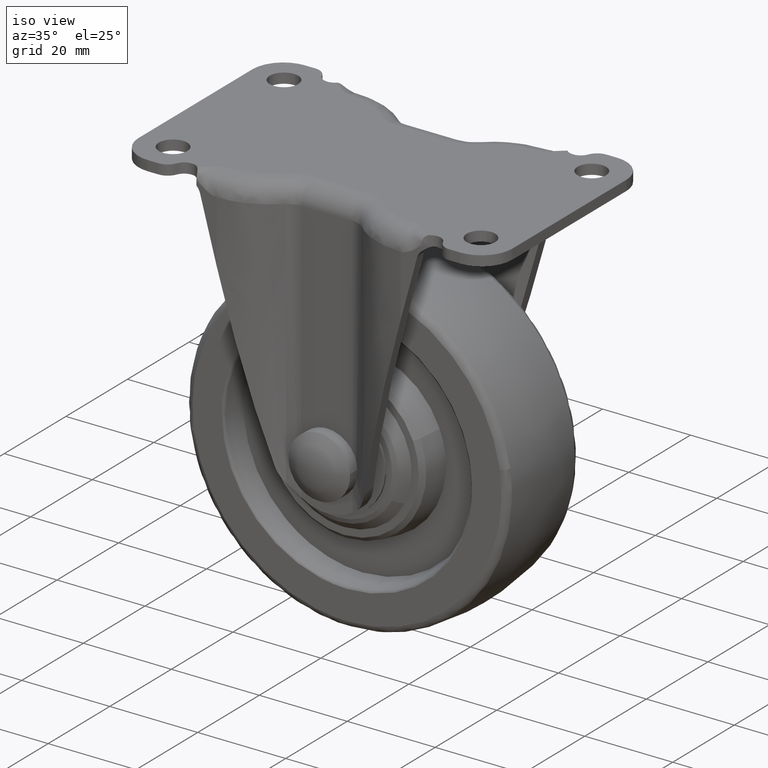
[diagram: clean part render]
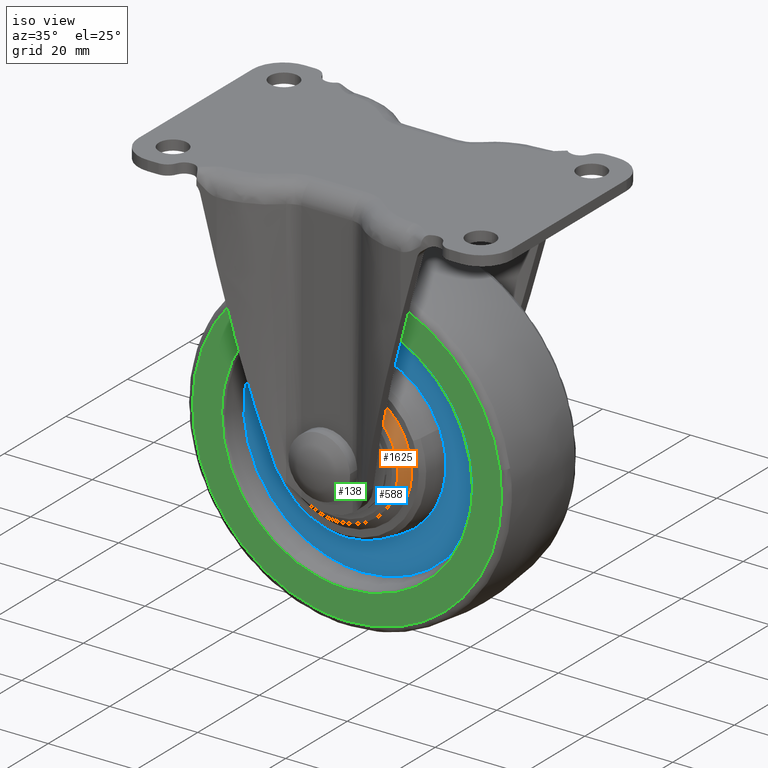
[diagram: same view with three faces highlighted in distinct colors, each labeled with its STEP entity id]
A machine part, iso view with three faces highlighted in distinct colors.
Their STEP definitions:

[orange] entity #1625 — the highlighted face is a freeform B-spline surface patch.
#1407=CARTESIAN_POINT('',(0.0,-12.500000000000000,-40.128680000000003));
#1408=VERTEX_POINT('',#1407);
#1409=CARTESIAN_POINT('',(-13.756322451139351,-12.499999999991790,-48.641350631288120));
#1410=VERTEX_POINT('',#1409);
#1411=CARTESIAN_POINT('',(0.0,-12.500000000000000,-40.128680000000003));
#1412=CARTESIAN_POINT('',(-9.512061438881942,-12.499999999995893,-40.128679999998162));
#1413=CARTESIAN_POINT('',(-13.756322451139354,-12.499999999991783,-48.641350631288113));
#1421=(BOUNDED_CURVE()B_SPLINE_CURVE(2,(#1411,#1412,#1413),.UNSPECIFIED.,.F.,.U.)B_SPLINE_CURVE_WITH_KNOTS((3,3),(0.500000000000000,0.674147455739277),.UNSPECIFIED.)CURVE()GEOMETRIC_REPRESENTATION_ITEM()RATIONAL_B_SPLINE_CURVE((1.0,0.795973564561400,0.876192606204288))REPRESENTATION_ITEM(''));
#1422=EDGE_CURVE('',#1408,#1410,#1421,.T.);
#1424=CARTESIAN_POINT('',(13.756322451139360,-12.499999999991790,-62.358649368711873));
#1425=VERTEX_POINT('',#1424);
#1426=CARTESIAN_POINT('',(13.756322451139354,-12.499999999991783,-62.358649368711880));
#1427=CARTESIAN_POINT('',(15.371320000006813,-12.499999999992390,-59.119465406140812));
#1428=CARTESIAN_POINT('',(15.371320000005950,-12.499999999993349,-55.500000000002970));
#1429=CARTESIAN_POINT('',(15.371320000002273,-12.499999999997458,-40.128680000001133));
#1430=CARTESIAN_POINT('',(0.0,-12.500000000000000,-40.128680000000003));
#1438=(BOUNDED_CURVE()B_SPLINE_CURVE(2,(#1426,#1427,#1428,#1429,#1430),.UNSPECIFIED.,.F.,.U.)B_SPLINE_CURVE_WITH_KNOTS((3,2,3),(0.174147455739277,0.250000000000000,0.500000000000000),.UNSPECIFIED.)CURVE()GEOMETRIC_REPRESENTATION_ITEM()RATIONAL_B_SPLINE_CURVE((0.876192606204288,0.911133216625148,1.0,0.707106781186548,1.0))REPRESENTATION_ITEM(''));
#1439=EDGE_CURVE('',#1425,#1408,#1438,.T.);
#1494=CARTESIAN_POINT('',(12.135900599974260,-14.310660000038240,-61.550736836332050));
#1495=VERTEX_POINT('',#1494);
#1524=CARTESIAN_POINT('',(-12.135900599974271,-14.310660000038240,-49.449263163667950));
#1525=VERTEX_POINT('',#1524);
#1541=CARTESIAN_POINT('',(-12.135900599974271,-14.310660000038240,-49.449263163667950));
#1542=CARTESIAN_POINT('',(-13.756322451139351,-12.499999999991790,-48.641350631288120));
#1543=QUASI_UNIFORM_CURVE('',1,(#1541,#1542),.UNSPECIFIED.,.F.,.U.);
#1544=EDGE_CURVE('',#1525,#1410,#1543,.T.);
#1548=CARTESIAN_POINT('',(12.135900599974260,-14.310660000038240,-61.550736836332050));
#1549=CARTESIAN_POINT('',(13.756322451139360,-12.499999999991790,-62.358649368711873));
#1550=QUASI_UNIFORM_CURVE('',1,(#1548,#1549),.UNSPECIFIED.,.F.,.U.);
#1551=EDGE_CURVE('',#1495,#1425,#1550,.T.);
#1556=CARTESIAN_POINT('',(-12.095390053628440,-14.355926500105360,-49.469460977028440));
#1557=CARTESIAN_POINT('',(-6.064851030656881,-14.355926500105358,-37.374070923400012));
#1558=CARTESIAN_POINT('',(6.030539022971558,-14.355926500105360,-43.404609946371572));
#1559=CARTESIAN_POINT('',(18.125929076599988,-14.355926500105358,-49.435148969343125));
#1560=CARTESIAN_POINT('',(12.095390053628440,-14.355926500105360,-61.530539022971560));
#1561=CARTESIAN_POINT('',(-13.797845761119230,-12.453601837497370,-48.620647872747938));
#1562=CARTESIAN_POINT('',(-6.918493633867168,-12.453601837497363,-34.822802111628711));
#1563=CARTESIAN_POINT('',(6.879352127252062,-12.453601837497370,-41.702154238880773));
#1564=CARTESIAN_POINT('',(20.677197888371289,-12.453601837497363,-48.581506366132835));
#1565=CARTESIAN_POINT('',(13.797845761119230,-12.453601837497370,-62.379352127252062));
#1573=(BOUNDED_SURFACE()B_SPLINE_SURFACE(2,1,((#1556,#1561),(#1557,#1562),(#1558,#1563),(#1559,#1564),(#1560,#1565)),.UNSPECIFIED.,.F.,.F.,.U.)B_SPLINE_SURFACE_WITH_KNOTS((3,2,3),(2,2),(0.0,25.544911855018331,51.089823710036669),(0.0,2.690293337896986),.UNSPECIFIED.)GEOMETRIC_REPRESENTATION_ITEM()RATIONAL_B_SPLINE_SURFACE(((1.0,1.0),(0.707106781186548,0.707106781186548),(1.0,1.0),(0.707106781186548,0.707106781186548),(1.0,1.0)))REPRESENTATION_ITEM('')SURFACE());
#1574=CARTESIAN_POINT('',(9.648893396430918,-14.310660000102789,-45.971602660618977));
#1575=VERTEX_POINT('',#1574);
#1576=CARTESIAN_POINT('',(12.135900599974267,-14.310660000038245,-61.550736836332050));
#1577=CARTESIAN_POINT('',(13.560659999951767,-14.310660000052891,-58.693111571030606));
#1578=CARTESIAN_POINT('',(13.560659999944351,-14.310660000066880,-55.500000000049333));
#1579=CARTESIAN_POINT('',(13.560659999931405,-14.310660000091266,-49.932837441707115));
#1580=CARTESIAN_POINT('',(9.648893396430918,-14.310660000102789,-45.971602660618984));
#1588=(BOUNDED_CURVE()B_SPLINE_CURVE(2,(#1576,#1577,#1578,#1579,#1580),.UNSPECIFIED.,.F.,.U.)B_SPLINE_CURVE_WITH_KNOTS((3,2,3),(0.174147455740679,0.250000000000000,0.374051937432041),.UNSPECIFIED.)CURVE()GEOMETRIC_REPRESENTATION_ITEM()RATIONAL_B_SPLINE_CURVE((0.876192606205580,0.911133216626790,1.0,0.854664114981938,0.853561814883004))REPRESENTATION_ITEM(''));
#1589=EDGE_CURVE('',#1495,#1575,#1588,.T.);
#1590=ORIENTED_EDGE('',*,*,#1589,.F.);
#1591=ORIENTED_EDGE('',*,*,#1551,.T.);
#1592=ORIENTED_EDGE('',*,*,#1439,.T.);
#1593=ORIENTED_EDGE('',*,*,#1422,.T.);
#1594=ORIENTED_EDGE('',*,*,#1544,.F.);
#1595=CARTESIAN_POINT('',(0.0,-14.310660000000000,-41.939340000000001));
#1596=VERTEX_POINT('',#1595);
#1597=CARTESIAN_POINT('',(0.0,-14.310660000000000,-41.939340000000001));
#1598=CARTESIAN_POINT('',(-8.391591032705875,-14.310660000008570,-41.939339999992136));
#1599=CARTESIAN_POINT('',(-12.135900599974264,-14.310660000038242,-49.449263163667936));
#1607=(BOUNDED_CURVE()B_SPLINE_CURVE(2,(#1597,#1598,#1599),.UNSPECIFIED.,.F.,.U.)B_SPLINE_CURVE_WITH_KNOTS((3,3),(0.500000000000000,0.674147455740679),.UNSPECIFIED.)CURVE()GEOMETRIC_REPRESENTATION_ITEM()RATIONAL_B_SPLINE_CURVE((1.0,0.795973564559757,0.876192606205580))REPRESENTATION_ITEM(''));
#1608=EDGE_CURVE('',#1596,#1525,#1607,.T.);
#1609=ORIENTED_EDGE('',*,*,#1608,.F.);
#1610=CARTESIAN_POINT('',(9.648893396430918,-14.310660000102789,-45.971602660618984));
#1611=CARTESIAN_POINT('',(5.666985914657127,-14.310660000051396,-41.939340000036118));
#1612=CARTESIAN_POINT('',(0.0,-14.310660000000000,-41.939340000000001));
#1620=(BOUNDED_CURVE()B_SPLINE_CURVE(2,(#1610,#1611,#1612),.UNSPECIFIED.,.F.,.U.)B_SPLINE_CURVE_WITH_KNOTS((3,3),(0.374051937432041,0.500000000000000),.UNSPECIFIED.)CURVE()GEOMETRIC_REPRESENTATION_ITEM()RATIONAL_B_SPLINE_CURVE((0.853561814883004,0.852442666204610,1.0))REPRESENTATION_ITEM(''));
#1621=EDGE_CURVE('',#1575,#1596,#1620,.T.);
#1622=ORIENTED_EDGE('',*,*,#1621,.F.);
#1623=EDGE_LOOP('',(#1590,#1591,#1592,#1593,#1594,#1609,#1622));
#1624=FACE_OUTER_BOUND('',#1623,.T.);
#1625=ADVANCED_FACE('',(#1624),#1573,.T.);

[blue] entity #588 — the highlighted face is a freeform B-spline surface patch.
#357=CARTESIAN_POINT('',(-11.802124245354550,-6.499994805665171,-79.783941798294052));
#358=VERTEX_POINT('',#357);
#372=CARTESIAN_POINT('',(0.0,-6.500000000000000,-28.500000000000000));
#373=VERTEX_POINT('',#372);
#374=CARTESIAN_POINT('',(0.0,-6.500000000000000,-28.500000000000000));
#375=CARTESIAN_POINT('',(-1.323575649896051,-6.499999970707060,-28.499929292940202));
#376=CARTESIAN_POINT('',(-3.592563202566921,-6.499999904389432,-28.667194558513181));
#377=CARTESIAN_POINT('',(-6.979525217860738,-6.499999763511727,-29.352299568995370));
#378=CARTESIAN_POINT('',(-9.814621336474625,-6.499999611053282,-30.284799625092781));
#379=CARTESIAN_POINT('',(-12.566746797192829,-6.499999428492346,-31.549337379069190));
#380=CARTESIAN_POINT('',(-15.543310513045061,-6.499999193661187,-33.305622979022921));
#381=CARTESIAN_POINT('',(-18.427430743164422,-6.499998906586038,-35.626308701998880));
#382=CARTESIAN_POINT('',(-21.088096754432652,-6.499998569374074,-38.519636733886699));
#383=CARTESIAN_POINT('',(-22.864660406637359,-6.499998288053693,-41.035382134059397));
#384=CARTESIAN_POINT('',(-24.397123237071039,-6.499997987204562,-43.810320563061708));
#385=CARTESIAN_POINT('',(-25.605759797293601,-6.499997683075370,-46.693883462914251));
#386=CARTESIAN_POINT('',(-26.525892620227928,-6.499997337319579,-50.076588600133363));
#387=CARTESIAN_POINT('',(-26.958947027549439,-6.499997025330287,-53.220349334994090));
#388=CARTESIAN_POINT('',(-27.053470973695990,-6.499996681945818,-56.768399044167452));
#389=CARTESIAN_POINT('',(-26.667176031651390,-6.499996345619930,-60.353731432064500));
#390=CARTESIAN_POINT('',(-25.621117373243390,-6.499995990017972,-64.291262606034508));
#391=CARTESIAN_POINT('',(-24.277392875733462,-6.499995713054021,-67.479814587303693));
#392=CARTESIAN_POINT('',(-22.403423833786832,-6.499995443245314,-70.715987236185285));
#393=CARTESIAN_POINT('',(-20.254883045304581,-6.499995223861078,-73.491141429734753));
#394=CARTESIAN_POINT('',(-17.739290317488312,-6.499995044851511,-75.931041104641920));
#395=CARTESIAN_POINT('',(-15.041049926965870,-6.499994904293733,-78.013215230994177));
#396=CARTESIAN_POINT('',(-13.035127938770440,-6.499994836003809,-79.184796378580344));
#397=CARTESIAN_POINT('',(-11.802124245354550,-6.499994805665171,-79.783941798294052));
#398=B_SPLINE_CURVE_WITH_KNOTS('',3,(#374,#375,#376,#377,#378,#379,#380,#381,#382,#383,#384,#385,#386,#387,#388,#389,#390,#391,#392,#393,#394,#395,#396,#397),.UNSPECIFIED.,.F.,.U.,(4,1,1,1,1,1,1,1,1,1,1,1,1,1,1,1,1,1,1,1,1,4),(6.365099E-009,3.970720741212332,6.807035436193516,10.352381422051741,12.905019534249920,15.883114386325870,20.704799063609769,23.966521157777120,27.653696258986660,29.922723182775389,33.468035155681179,37.013385701868032,40.416915729246632,42.969520456438332,47.649379349683400,51.194711543951087,55.165493749325293,58.001770314016262,62.397998374857231,65.659714603670793,68.495989636096311,72.608573687878462),.UNSPECIFIED.);
#399=EDGE_CURVE('',#373,#358,#398,.T.);
#401=CARTESIAN_POINT('',(11.802124245354550,-6.499994805665169,-31.216058201705948));
#402=VERTEX_POINT('',#401);
#403=CARTESIAN_POINT('',(11.802124245354545,-6.499994805665169,-31.216058201705948));
#404=CARTESIAN_POINT('',(6.213589289407016,-6.499997402832584,-28.500000283431600));
#405=CARTESIAN_POINT('',(0.0,-6.500000000000000,-28.500000000000000));
#413=(BOUNDED_CURVE()B_SPLINE_CURVE(2,(#403,#404,#405),.UNSPECIFIED.,.F.,.U.)B_SPLINE_CURVE_WITH_KNOTS((3,3),(0.425716712084088,0.500000000000000),.UNSPECIFIED.)CURVE()GEOMETRIC_REPRESENTATION_ITEM()RATIONAL_B_SPLINE_CURVE((0.877661406920945,0.912971714793048,1.0))REPRESENTATION_ITEM(''));
#414=EDGE_CURVE('',#402,#373,#413,.T.);
#464=CARTESIAN_POINT('',(0.0,-6.500000000000005,-82.499999999999929));
#465=VERTEX_POINT('',#464);
#466=CARTESIAN_POINT('',(0.0,-6.500000000000005,-82.499999999999929));
#467=CARTESIAN_POINT('',(1.701771697254402,-6.499999962348541,-82.500211232343219));
#468=CARTESIAN_POINT('',(4.443409072618024,-6.499999876614649,-82.239867936478348));
#469=CARTESIAN_POINT('',(8.529848484502953,-6.499999687102681,-81.210136851166794));
#470=CARTESIAN_POINT('',(11.869075159943650,-6.499999482629586,-79.852912881001487));
#471=CARTESIAN_POINT('',(15.223828804827260,-6.499999220216283,-77.896918464248159));
#472=CARTESIAN_POINT('',(17.990886839823840,-6.499998951621643,-75.741416862459289));
#473=CARTESIAN_POINT('',(20.178027800405751,-6.499998688420526,-73.508524382183339));
#474=CARTESIAN_POINT('',(22.070692076077410,-6.499998419199023,-71.145281319006045));
#475=CARTESIAN_POINT('',(23.497164072558899,-6.499998172413945,-68.907993438637163));
#476=CARTESIAN_POINT('',(24.799067962815659,-6.499997890770938,-66.279661201365826));
#477=CARTESIAN_POINT('',(25.864828514225010,-6.499997599216435,-63.493944511626403));
#478=CARTESIAN_POINT('',(26.639959613737219,-6.499997276483281,-60.317211740474022));
#479=CARTESIAN_POINT('',(26.976998316040000,-6.499996983959330,-57.353714762263436));
#480=CARTESIAN_POINT('',(27.031057169671300,-6.499996705226339,-54.468463446090020));
#481=CARTESIAN_POINT('',(26.745242342432761,-6.499996393760582,-51.164708419483048));
#482=CARTESIAN_POINT('',(25.942675845923961,-6.499996082944703,-47.748787827447757));
#483=CARTESIAN_POINT('',(24.760555494924390,-6.499995806528256,-44.603133812740708));
#484=CARTESIAN_POINT('',(23.246735203304581,-6.499995551297388,-41.601388814742478));
#485=CARTESIAN_POINT('',(20.958788046024861,-6.499995282761613,-38.283175292870872));
#486=CARTESIAN_POINT('',(18.186659099518380,-6.499995068657637,-35.419402481761573));
#487=CARTESIAN_POINT('',(15.081988814033110,-6.499994905687528,-33.010692512241441));
#488=CARTESIAN_POINT('',(13.035122606605089,-6.499994836003336,-31.815209478396390));
#489=CARTESIAN_POINT('',(11.802124245354550,-6.499994805665169,-31.216058201705948));
#490=B_SPLINE_CURVE_WITH_KNOTS('',3,(#466,#467,#468,#469,#470,#471,#472,#473,#474,#475,#476,#477,#478,#479,#480,#481,#482,#483,#484,#485,#486,#487,#488,#489),.UNSPECIFIED.,.F.,.U.,(4,1,1,1,1,1,1,1,1,1,1,1,1,1,1,1,1,1,1,1,1,4),(6.900564E-009,5.105270491588101,8.225182602468792,12.621414226599359,15.883114386744090,19.853914224033129,23.115638254949509,25.242842661234590,28.930020338802979,31.057208840023950,34.035310142607152,37.864310911257881,40.842398808968269,42.969520456670132,46.514873414670987,50.769269613603733,53.463746395799028,56.583636810217520,60.838045037930037,65.517900756921961,68.495989636130759,72.608573687877183),.UNSPECIFIED.);
#491=EDGE_CURVE('',#465,#402,#490,.T.);
#493=CARTESIAN_POINT('',(-11.802124245354545,-6.499994805665171,-79.783941798294052));
#494=CARTESIAN_POINT('',(-6.213589289407012,-6.499997402832589,-82.499999716568354));
#495=CARTESIAN_POINT('',(0.0,-6.500000000000005,-82.499999999999929));
#503=(BOUNDED_CURVE()B_SPLINE_CURVE(2,(#493,#494,#495),.UNSPECIFIED.,.F.,.U.)B_SPLINE_CURVE_WITH_KNOTS((3,3),(0.925716712084088,1.0),.UNSPECIFIED.)CURVE()GEOMETRIC_REPRESENTATION_ITEM()RATIONAL_B_SPLINE_CURVE((0.877661406920945,0.912971714793048,1.0))REPRESENTATION_ITEM(''));
#504=EDGE_CURVE('',#358,#465,#503,.T.);
#511=CARTESIAN_POINT('',(-29.670198281881060,-6.500000000000000,-85.197299895337451));
#512=CARTESIAN_POINT('',(-29.670198281881060,-6.500000000000000,-25.802698656269609));
#513=CARTESIAN_POINT('',(29.670199246595089,-6.500000000000000,-85.197299895337437));
#514=CARTESIAN_POINT('',(29.670199246595089,-6.500000000000000,-25.802698656269609));
#515=B_SPLINE_SURFACE_WITH_KNOTS('',1,1,((#511,#513),(#512,#514)),.UNSPECIFIED.,.F.,.F.,.U.,(2,2),(2,2),(0.0,59.394601239067832),(0.0,59.340397528476153),.UNSPECIFIED.);
#516=ORIENTED_EDGE('',*,*,#491,.T.);
#517=ORIENTED_EDGE('',*,*,#414,.T.);
#518=ORIENTED_EDGE('',*,*,#399,.T.);
#519=ORIENTED_EDGE('',*,*,#504,.T.);
#520=EDGE_LOOP('',(#516,#517,#518,#519));
#521=FACE_OUTER_BOUND('',#520,.T.);
#522=CARTESIAN_POINT('',(0.0,-6.500000000000000,-74.500000000000000));
#523=VERTEX_POINT('',#522);
#524=CARTESIAN_POINT('',(17.553711117709259,-6.499999999997074,-48.229014785049259));
#525=VERTEX_POINT('',#524);
#526=CARTESIAN_POINT('',(0.0,-6.500000000000000,-74.500000000000000));
#527=CARTESIAN_POINT('',(19.000000000000178,-6.499999999999023,-74.499999999999929));
#528=CARTESIAN_POINT('',(19.000000000000451,-6.499999999997559,-55.499999999999808));
#529=CARTESIAN_POINT('',(19.000000000000497,-6.499999999997268,-51.720665019778522));
#530=CARTESIAN_POINT('',(17.553711117709270,-6.499999999997076,-48.229014785049259));
#538=(BOUNDED_CURVE()B_SPLINE_CURVE(2,(#526,#527,#528,#529,#530),.UNSPECIFIED.,.F.,.U.)B_SPLINE_CURVE_WITH_KNOTS((3,2,3),(0.0,0.250000000000000,0.314972883118660),.UNSPECIFIED.)CURVE()GEOMETRIC_REPRESENTATION_ITEM()RATIONAL_B_SPLINE_CURVE((1.0,0.707106781186548,1.0,0.923879532511142,0.887325194919015))REPRESENTATION_ITEM(''));
#539=EDGE_CURVE('',#523,#525,#538,.T.);
#540=ORIENTED_EDGE('',*,*,#539,.F.);
#541=CARTESIAN_POINT('',(-17.553711117709270,-6.499999999997074,-62.770985214950741));
#542=VERTEX_POINT('',#541);
#543=CARTESIAN_POINT('',(-17.553711117709270,-6.499999999997076,-62.770985214950741));
#544=CARTESIAN_POINT('',(-12.695394120456138,-6.499999999998538,-74.500000000000114));
#545=CARTESIAN_POINT('',(0.0,-6.500000000000000,-74.500000000000000));
#553=(BOUNDED_CURVE()B_SPLINE_CURVE(2,(#543,#544,#545),.UNSPECIFIED.,.F.,.U.)B_SPLINE_CURVE_WITH_KNOTS((3,3),(0.814972883118660,1.0),.UNSPECIFIED.)CURVE()GEOMETRIC_REPRESENTATION_ITEM()RATIONAL_B_SPLINE_CURVE((0.887325194919015,0.783227248675405,1.0))REPRESENTATION_ITEM(''));
#554=EDGE_CURVE('',#542,#523,#553,.T.);
#555=ORIENTED_EDGE('',*,*,#554,.F.);
#556=CARTESIAN_POINT('',(0.0,-6.500000000000000,-36.500000000000007));
#557=VERTEX_POINT('',#556);
#558=CARTESIAN_POINT('',(0.0,-6.500000000000000,-36.500000000000007));
#559=CARTESIAN_POINT('',(-19.000000000000178,-6.499999999999023,-36.500000000000078));
#560=CARTESIAN_POINT('',(-19.000000000000451,-6.499999999997559,-55.500000000000192));
#561=CARTESIAN_POINT('',(-19.000000000000504,-6.499999999997268,-59.279334980221478));
#562=CARTESIAN_POINT('',(-17.553711117709270,-6.499999999997076,-62.770985214950741));
#570=(BOUNDED_CURVE()B_SPLINE_CURVE(2,(#558,#559,#560,#561,#562),.UNSPECIFIED.,.F.,.U.)B_SPLINE_CURVE_WITH_KNOTS((3,2,3),(0.500000000000000,0.750000000000000,0.814972883118660),.UNSPECIFIED.)CURVE()GEOMETRIC_REPRESENTATION_ITEM()RATIONAL_B_SPLINE_CURVE((1.0,0.707106781186548,1.0,0.923879532511142,0.887325194919015))REPRESENTATION_ITEM(''));
#571=EDGE_CURVE('',#557,#542,#570,.T.);
#572=ORIENTED_EDGE('',*,*,#571,.F.);
#573=CARTESIAN_POINT('',(17.553711117709270,-6.499999999997076,-48.229014785049259));
#574=CARTESIAN_POINT('',(12.695394120456129,-6.499999999998536,-36.499999999999901));
#575=CARTESIAN_POINT('',(0.0,-6.500000000000000,-36.500000000000007));
#583=(BOUNDED_CURVE()B_SPLINE_CURVE(2,(#573,#574,#575),.UNSPECIFIED.,.F.,.U.)B_SPLINE_CURVE_WITH_KNOTS((3,3),(0.314972883118660,0.500000000000000),.UNSPECIFIED.)CURVE()GEOMETRIC_REPRESENTATION_ITEM()RATIONAL_B_SPLINE_CURVE((0.887325194919015,0.783227248675406,1.0))REPRESENTATION_ITEM(''));
#584=EDGE_CURVE('',#525,#557,#583,.T.);
#585=ORIENTED_EDGE('',*,*,#584,.F.);
#586=EDGE_LOOP('',(#540,#555,#572,#585));
#587=FACE_BOUND('',#586,.T.);
#588=ADVANCED_FACE('',(#521,#587),#515,.F.);

[green] entity #138 — the highlighted face is a freeform B-spline surface patch.
#5=CARTESIAN_POINT('',(-38.640527654622737,-11.500000000000000,-94.149344735891233));
#6=CARTESIAN_POINT('',(-38.640527654622737,-11.500000000000000,-16.850653379107928));
#7=CARTESIAN_POINT('',(38.640529539193558,-11.500000000000000,-94.149344735891233));
#8=CARTESIAN_POINT('',(38.640529539193558,-11.500000000000000,-16.850653379107928));
#9=B_SPLINE_SURFACE_WITH_KNOTS('',1,1,((#5,#7),(#6,#8)),.UNSPECIFIED.,.F.,.F.,.U.,(2,2),(2,2),(0.0,77.298691356783308),(0.0,77.281057193816309),.UNSPECIFIED.);
#10=CARTESIAN_POINT('',(0.0,-11.500000000000000,-90.638962516686505));
#11=VERTEX_POINT('',#10);
#12=CARTESIAN_POINT('',(34.740196610421947,-11.500000000000000,-50.221228653095359));
#13=VERTEX_POINT('',#12);
#14=CARTESIAN_POINT('',(0.0,-11.500000000000000,-90.638962516686505));
#15=CARTESIAN_POINT('',(35.138962521006682,-11.500000000000000,-90.638962516030048));
#16=CARTESIAN_POINT('',(35.138962526032920,-11.500000000000000,-55.499999998579803));
#17=CARTESIAN_POINT('',(35.138962526412612,-11.500000000000004,-52.845552652802795));
#18=CARTESIAN_POINT('',(34.740196610421954,-11.499999999999996,-50.221228653095359));
#26=(BOUNDED_CURVE()B_SPLINE_CURVE(2,(#14,#15,#16,#17,#18),.UNSPECIFIED.,.F.,.U.)B_SPLINE_CURVE_WITH_KNOTS((3,2,3),(0.0,0.250000000000000,0.275897584624503),.UNSPECIFIED.)CURVE()GEOMETRIC_REPRESENTATION_ITEM()RATIONAL_B_SPLINE_CURVE((1.0,0.707106781186548,1.0,0.969659092319342,0.945604234432636))REPRESENTATION_ITEM(''));
#27=EDGE_CURVE('',#11,#13,#26,.T.);
#28=ORIENTED_EDGE('',*,*,#27,.T.);
#29=CARTESIAN_POINT('',(0.0,-11.500000000000000,-20.361037483313499));
#30=VERTEX_POINT('',#29);
#31=CARTESIAN_POINT('',(34.740196610421954,-11.499999999999996,-50.221228653095359));
#32=CARTESIAN_POINT('',(30.202941870317012,-11.499999999999998,-20.361037482549754));
#33=CARTESIAN_POINT('',(0.0,-11.500000000000000,-20.361037483313499));
#41=(BOUNDED_CURVE()B_SPLINE_CURVE(2,(#31,#32,#33),.UNSPECIFIED.,.F.,.U.)B_SPLINE_CURVE_WITH_KNOTS((3,3),(0.275897584624503,0.500000000000000),.UNSPECIFIED.)CURVE()GEOMETRIC_REPRESENTATION_ITEM()RATIONAL_B_SPLINE_CURVE((0.945604234432636,0.737447688867206,1.0))REPRESENTATION_ITEM(''));
#42=EDGE_CURVE('',#13,#30,#41,.T.);
#43=ORIENTED_EDGE('',*,*,#42,.T.);
#44=CARTESIAN_POINT('',(-34.740196610421947,-11.500000000000000,-60.778771346904648));
#45=VERTEX_POINT('',#44);
#46=CARTESIAN_POINT('',(0.0,-11.500000000000000,-20.361037483313499));
#47=CARTESIAN_POINT('',(-35.138962521006682,-11.500000000000000,-20.361037483969945));
#48=CARTESIAN_POINT('',(-35.138962526032920,-11.500000000000000,-55.500000001420183));
#49=CARTESIAN_POINT('',(-35.138962526412598,-11.500000000000004,-58.154447347197198));
#50=CARTESIAN_POINT('',(-34.740196610421947,-11.499999999999998,-60.778771346904648));
#58=(BOUNDED_CURVE()B_SPLINE_CURVE(2,(#46,#47,#48,#49,#50),.UNSPECIFIED.,.F.,.U.)B_SPLINE_CURVE_WITH_KNOTS((3,2,3),(0.500000000000000,0.750000000000000,0.775897584624504),.UNSPECIFIED.)CURVE()GEOMETRIC_REPRESENTATION_ITEM()RATIONAL_B_SPLINE_CURVE((1.0,0.707106781186548,1.0,0.969659092319342,0.945604234432636))REPRESENTATION_ITEM(''));
#59=EDGE_CURVE('',#30,#45,#58,.T.);
#60=ORIENTED_EDGE('',*,*,#59,.T.);
#61=CARTESIAN_POINT('',(-34.740196610421947,-11.499999999999998,-60.778771346904648));
#62=CARTESIAN_POINT('',(-30.202941870316998,-11.500000000000000,-90.638962517450253));
#63=CARTESIAN_POINT('',(0.0,-11.500000000000000,-90.638962516686505));
#71=(BOUNDED_CURVE()B_SPLINE_CURVE(2,(#61,#62,#63),.UNSPECIFIED.,.F.,.U.)B_SPLINE_CURVE_WITH_KNOTS((3,3),(0.775897584624504,1.0),.UNSPECIFIED.)CURVE()GEOMETRIC_REPRESENTATION_ITEM()RATIONAL_B_SPLINE_CURVE((0.945604234432636,0.737447688867206,1.0))REPRESENTATION_ITEM(''));
#72=EDGE_CURVE('',#45,#11,#71,.T.);
#73=ORIENTED_EDGE('',*,*,#72,.T.);
#74=EDGE_LOOP('',(#28,#43,#60,#73));
#75=FACE_OUTER_BOUND('',#74,.T.);
#76=CARTESIAN_POINT('',(0.0,-11.500000000000000,-27.0));
#77=VERTEX_POINT('',#76);
#78=CARTESIAN_POINT('',(-28.499999995626489,-11.500000000000000,-55.500000000000000));
#79=VERTEX_POINT('',#78);
#80=CARTESIAN_POINT('',(0.0,-11.500000000000000,-27.0));
#81=CARTESIAN_POINT('',(-28.499999997813251,-11.500000000000002,-27.0));
#82=CARTESIAN_POINT('',(-28.499999995626489,-11.500000000000000,-55.500000000000000));
#90=(BOUNDED_CURVE()B_SPLINE_CURVE(2,(#80,#81,#82),.UNSPECIFIED.,.F.,.U.)B_SPLINE_CURVE_WITH_KNOTS((3,3),(0.500000000000000,0.750000000000000),.UNSPECIFIED.)CURVE()GEOMETRIC_REPRESENTATION_ITEM()RATIONAL_B_SPLINE_CURVE((1.0,0.707106781186547,1.0))REPRESENTATION_ITEM(''));
#91=EDGE_CURVE('',#77,#79,#90,.T.);
#92=ORIENTED_EDGE('',*,*,#91,.F.);
#93=CARTESIAN_POINT('',(28.499999995626489,-11.500000000000000,-55.500000000000007));
#94=VERTEX_POINT('',#93);
#95=CARTESIAN_POINT('',(28.499999995626489,-11.500000000000002,-55.500000000000007));
#96=CARTESIAN_POINT('',(28.499999997813255,-11.500000000000000,-26.999999999999989));
#97=CARTESIAN_POINT('',(0.0,-11.500000000000000,-27.0));
#105=(BOUNDED_CURVE()B_SPLINE_CURVE(2,(#95,#96,#97),.UNSPECIFIED.,.F.,.U.)B_SPLINE_CURVE_WITH_KNOTS((3,3),(0.250000000000000,0.500000000000000),.UNSPECIFIED.)CURVE()GEOMETRIC_REPRESENTATION_ITEM()RATIONAL_B_SPLINE_CURVE((1.000000000000000,0.707106781186547,1.0))REPRESENTATION_ITEM(''));
#106=EDGE_CURVE('',#94,#77,#105,.T.);
#107=ORIENTED_EDGE('',*,*,#106,.F.);
#108=CARTESIAN_POINT('',(0.0,-11.500000000000000,-84.0));
#109=VERTEX_POINT('',#108);
#110=CARTESIAN_POINT('',(0.0,-11.500000000000000,-84.0));
#111=CARTESIAN_POINT('',(28.499999997813241,-11.500000000000002,-84.0));
#112=CARTESIAN_POINT('',(28.499999995626489,-11.500000000000000,-55.500000000000007));
#120=(BOUNDED_CURVE()B_SPLINE_CURVE(2,(#110,#111,#112),.UNSPECIFIED.,.F.,.U.)B_SPLINE_CURVE_WITH_KNOTS((3,3),(0.0,0.250000000000000),.UNSPECIFIED.)CURVE()GEOMETRIC_REPRESENTATION_ITEM()RATIONAL_B_SPLINE_CURVE((1.0,0.707106781186547,1.0))REPRESENTATION_ITEM(''));
#121=EDGE_CURVE('',#109,#94,#120,.T.);
#122=ORIENTED_EDGE('',*,*,#121,.F.);
#123=CARTESIAN_POINT('',(-28.499999995626489,-11.500000000000000,-55.500000000000000));
#124=CARTESIAN_POINT('',(-28.499999997813251,-11.500000000000002,-84.0));
#125=CARTESIAN_POINT('',(0.0,-11.500000000000000,-84.0));
#133=(BOUNDED_CURVE()B_SPLINE_CURVE(2,(#123,#124,#125),.UNSPECIFIED.,.F.,.U.)B_SPLINE_CURVE_WITH_KNOTS((3,3),(0.750000000000000,1.0),.UNSPECIFIED.)CURVE()GEOMETRIC_REPRESENTATION_ITEM()RATIONAL_B_SPLINE_CURVE((1.0,0.707106781186547,1.0))REPRESENTATION_ITEM(''));
#134=EDGE_CURVE('',#79,#109,#133,.T.);
#135=ORIENTED_EDGE('',*,*,#134,.F.);
#136=EDGE_LOOP('',(#92,#107,#122,#135));
#137=FACE_BOUND('',#136,.T.);
#138=ADVANCED_FACE('',(#75,#137),#9,.F.);